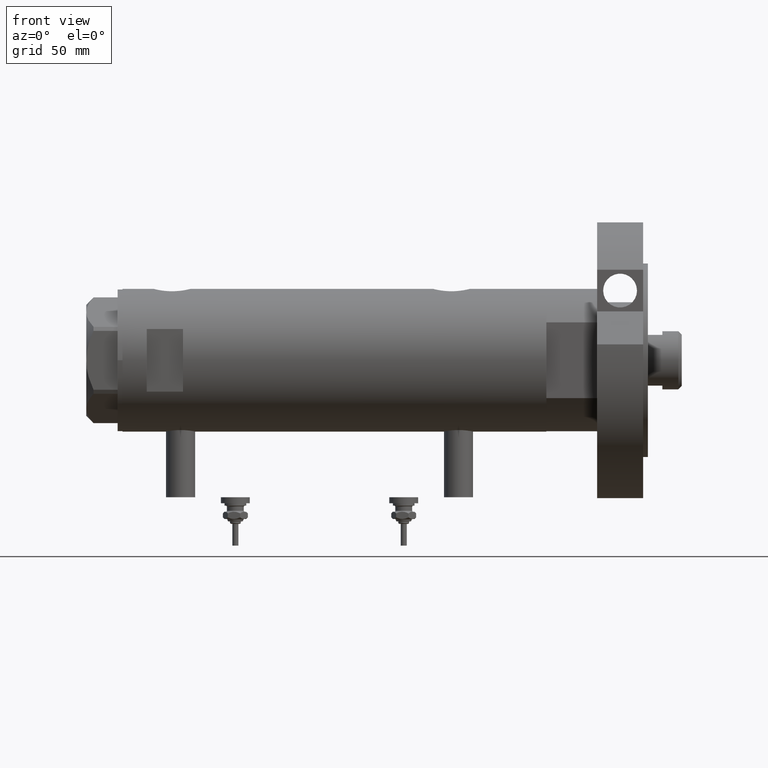
[diagram: clean part render]
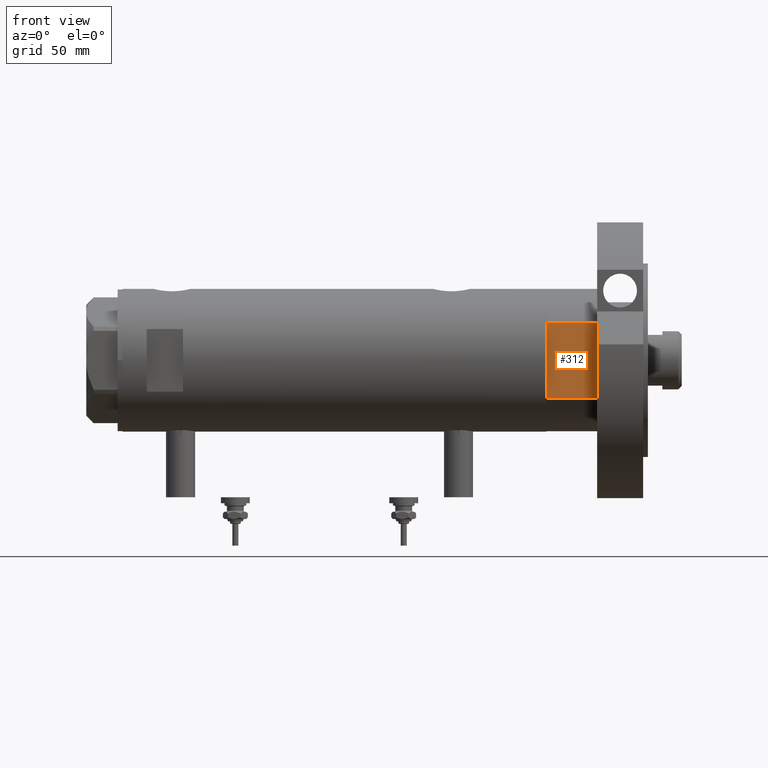
[diagram: same view with one face highlighted and labeled with its STEP entity id]
A machine part, front view. The second image highlights one B-rep face of the part: STEP entity #312.
In plain terms, the highlighted planar face has unit normal (-0, 1, 0).
Its self-contained STEP definition (entity closure, byte-faithful):
#46 = DIRECTION ( 'NONE',  ( 0.000000000000000000, -0.000000000000000000, 1.000000000000000000 ) ) ;
#312 = ADVANCED_FACE ( 'NONE', ( #4610 ), #3439, .F. ) ;
#396 = EDGE_CURVE ( 'NONE', #2754, #5576, #2939, .T. ) ;
#532 = LINE ( 'NONE', #2359, #6818 ) ;
#590 = VECTOR ( 'NONE', #836, 1000.000000000000000 ) ;
#836 = DIRECTION ( 'NONE',  ( -1.000000000000000000, -0.000000000000000000, -0.000000000000000000 ) ) ;
#865 = LINE ( 'NONE', #6727, #1940 ) ;
#880 = LINE ( 'NONE', #3202, #590 ) ;
#1177 = CARTESIAN_POINT ( 'NONE',  ( -15.66045976336583401, -25.00000000000000000, 0.000000000000000000 ) ) ;
#1241 = EDGE_CURVE ( 'NONE', #3367, #5576, #532, .T. ) ;
#1306 = ORIENTED_EDGE ( 'NONE', *, *, #1241, .T. ) ;
#1351 = EDGE_CURVE ( 'NONE', #5080, #6127, #865, .T. ) ;
#1469 = VERTEX_POINT ( 'NONE', #3648 ) ;
#1502 = DIRECTION ( 'NONE',  ( -1.000000000000000000, -0.000000000000000000, -0.000000000000000000 ) ) ;
#1737 = CARTESIAN_POINT ( 'NONE',  ( -15.66045976336583401, -25.00000000000000000, 0.000000000000000000 ) ) ;
#1898 = ORIENTED_EDGE ( 'NONE', *, *, #396, .F. ) ;
#1940 = VECTOR ( 'NONE', #1502, 1000.000000000000000 ) ;
#2228 = ORIENTED_EDGE ( 'NONE', *, *, #3845, .T. ) ;
#2298 = DIRECTION ( 'NONE',  ( -1.000000000000000000, -0.000000000000000000, -0.000000000000000000 ) ) ;
#2359 = CARTESIAN_POINT ( 'NONE',  ( -15.66045976336583401, -25.00000000000000000, 21.00000000000000000 ) ) ;
#2362 = CARTESIAN_POINT ( 'NONE',  ( -15.66045976336583401, -25.00000000000000000, 0.000000000000000000 ) ) ;
#2523 = VECTOR ( 'NONE', #2298, 1000.000000000000000 ) ;
#2558 = ORIENTED_EDGE ( 'NONE', *, *, #3748, .F. ) ;
#2594 = EDGE_LOOP ( 'NONE', ( #1306, #1898, #2558, #6188, #3440, #2228 ) ) ;
#2754 = VERTEX_POINT ( 'NONE', #4474 ) ;
#2875 = VECTOR ( 'NONE', #3513, 1000.000000000000000 ) ;
#2939 = LINE ( 'NONE', #1177, #2875 ) ;
#3202 = CARTESIAN_POINT ( 'NONE',  ( -15.66045976336583401, -25.00000000000000000, 0.000000000000000000 ) ) ;
#3367 = VERTEX_POINT ( 'NONE', #6083 ) ;
#3439 = PLANE ( 'NONE',  #4624 ) ;
#3440 = ORIENTED_EDGE ( 'NONE', *, *, #5441, .F. ) ;
#3452 = LINE ( 'NONE', #1737, #2523 ) ;
#3513 = DIRECTION ( 'NONE',  ( -0.000000000000000000, -0.000000000000000000, 1.000000000000000000 ) ) ;
#3648 = CARTESIAN_POINT ( 'NONE',  ( 15.66045976336583401, -25.00000000000000000, 0.000000000000000000 ) ) ;
#3748 = EDGE_CURVE ( 'NONE', #6127, #2754, #3452, .T. ) ;
#3845 = EDGE_CURVE ( 'NONE', #1469, #3367, #7177, .T. ) ;
#4174 = CARTESIAN_POINT ( 'NONE',  ( 7.141428428542853091, -25.00000000000000000, 0.000000000000000000 ) ) ;
#4176 = DIRECTION ( 'NONE',  ( -1.000000000000000000, -0.000000000000000000, -0.000000000000000000 ) ) ;
#4249 = CARTESIAN_POINT ( 'NONE',  ( -7.141428428542853091, -25.00000000000000000, 0.000000000000000000 ) ) ;
#4400 = VECTOR ( 'NONE', #6073, 1000.000000000000000 ) ;
#4474 = CARTESIAN_POINT ( 'NONE',  ( -15.66045976336582690, -25.00000000000000000, 0.000000000000000000 ) ) ;
#4610 = FACE_OUTER_BOUND ( 'NONE', #2594, .T. ) ;
#4624 = AXIS2_PLACEMENT_3D ( 'NONE', #2362, #6443, #46 ) ;
#4732 = CARTESIAN_POINT ( 'NONE',  ( 15.66045976336583401, -25.00000000000000000, 0.000000000000000000 ) ) ;
#5080 = VERTEX_POINT ( 'NONE', #4174 ) ;
#5155 = CARTESIAN_POINT ( 'NONE',  ( -15.66045976336583045, -24.99999999999999645, 20.99999999999999645 ) ) ;
#5441 = EDGE_CURVE ( 'NONE', #1469, #5080, #880, .T. ) ;
#5576 = VERTEX_POINT ( 'NONE', #5155 ) ;
#6073 = DIRECTION ( 'NONE',  ( -0.000000000000000000, -0.000000000000000000, 1.000000000000000000 ) ) ;
#6083 = CARTESIAN_POINT ( 'NONE',  ( 15.66045976336583045, -25.00000000000000000, 21.00000000000000355 ) ) ;
#6127 = VERTEX_POINT ( 'NONE', #4249 ) ;
#6188 = ORIENTED_EDGE ( 'NONE', *, *, #1351, .F. ) ;
#6443 = DIRECTION ( 'NONE',  ( -0.000000000000000000, 1.000000000000000000, 0.000000000000000000 ) ) ;
#6727 = CARTESIAN_POINT ( 'NONE',  ( -15.66045976336583401, -25.00000000000000000, 0.000000000000000000 ) ) ;
#6818 = VECTOR ( 'NONE', #4176, 1000.000000000000000 ) ;
#7177 = LINE ( 'NONE', #4732, #4400 ) ;